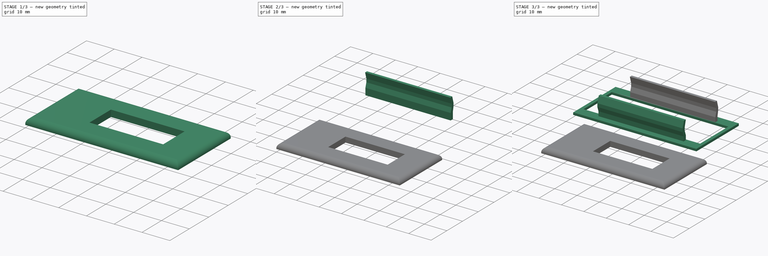
[diagram: build sequence overview — one tinted view per stage of 3, left to right]
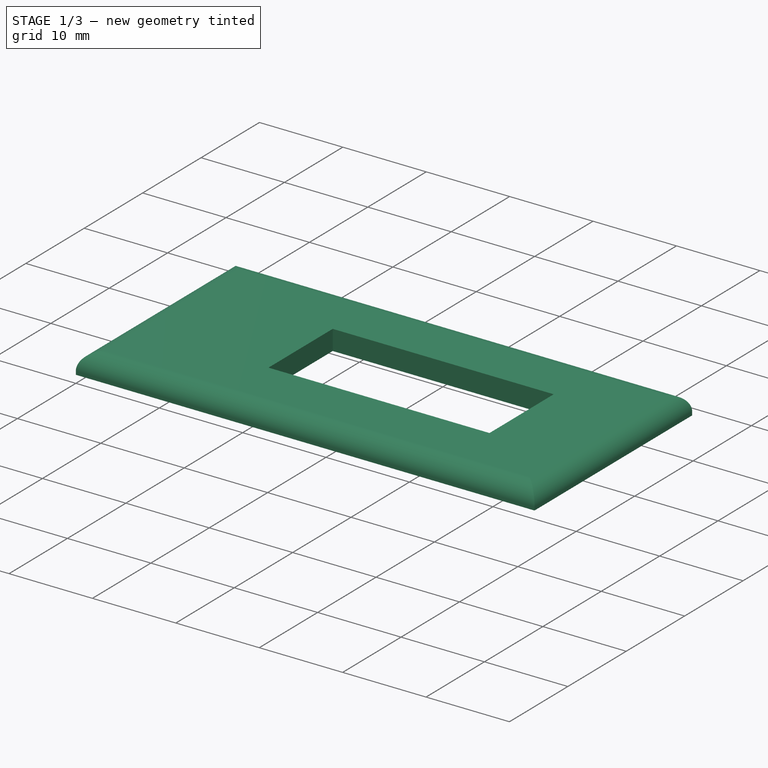
[diagram: stage 1 of 3 — iso view after this stage's code; geometry added in this stage tinted green]
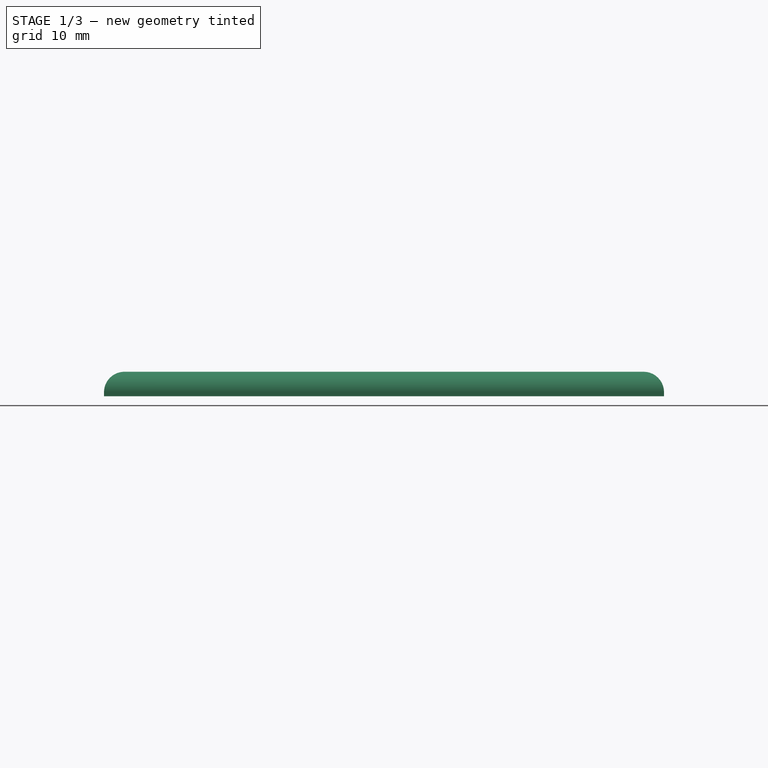
[diagram: stage 1 of 3 — front view after this stage's code; geometry added in this stage tinted green]
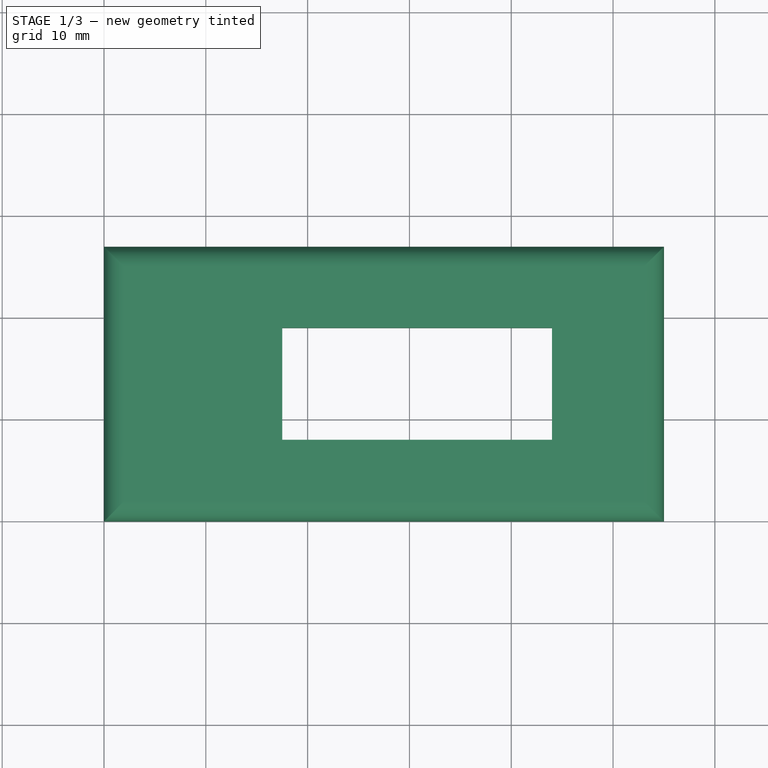
[diagram: stage 1 of 3 — top view after this stage's code; geometry added in this stage tinted green]
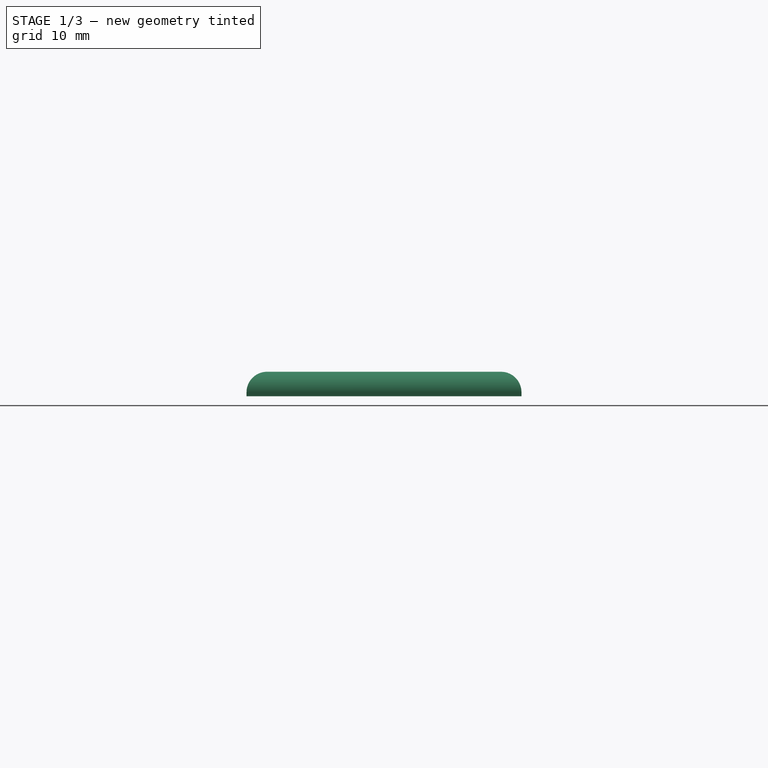
[diagram: stage 1 of 3 — right view after this stage's code; geometry added in this stage tinted green]
FCSTD DOCUMENT  (FreeCAD 0.21R33668 +26 (Git))
Label: mgb_display2
License: All rights reserved
LicenseURL: http://en.wikipedia.org/wiki/All_rights_reserved
objects: PartDesign::Body×6, Sketcher::SketchObject×5, PartDesign::Pad×5, Part::MultiFuse×1, App::Part×1, Part::Fillet×1, Part::Cut×1
note: 24 computed .brp shape members not serialized (recipe doc carries the construction recipe); baked Part::Feature solids carry a one-line shape summary decoded from their .brp

FEATURE [Sketcher::SketchObject] Sketch
  FullyConstrained = true
  MapMode = 5
  Support = -> [XY_Plane001]
  sketch-geometry (8):
    g0: LineSegment StartX=0 StartY=27 StartZ=0 EndX=55 EndY=27 EndZ=0
    g1: LineSegment StartX=55 StartY=27 StartZ=0 EndX=55 EndY=0 EndZ=0
    g2: LineSegment StartX=55 StartY=0 StartZ=0 EndX=0 EndY=0 EndZ=0
    g3: LineSegment StartX=0 StartY=0 StartZ=0 EndX=0 EndY=27 EndZ=0
    g4: LineSegment StartX=17.5 StartY=19 StartZ=0 EndX=44 EndY=19 EndZ=0
    g5: LineSegment StartX=44 StartY=19 StartZ=0 EndX=44 EndY=8 EndZ=0
    g6: LineSegment StartX=44 StartY=8 StartZ=0 EndX=17.5 EndY=8 EndZ=0
    g7: LineSegment StartX=17.5 StartY=8 StartZ=0 EndX=17.5 EndY=19 EndZ=0
  constraints (24):
    c: Coincident(g0,g1)
    c: Coincident(g1,g2)
    c: Coincident(g2,g3)
    c: Coincident(g3,g0)
    c: Horizontal(g0)
    c: Horizontal(g2)
    c: Vertical(g1)
    c: Vertical(g3)
    c: PointOnObject(g0,g-2)
    c: PointOnObject(g1,g-1)
    c: DistanceX(g0) = 55
    c: Coincident(g4,g5)
    c: Coincident(g5,g6)
    c: Coincident(g6,g7)
    c: Coincident(g7,g4)
    c: Horizontal(g4)
    c: Horizontal(g6)
    c: Vertical(g5)
    c: Vertical(g7)
    c: DistanceX(g4) = 26.5
    c: DistanceX(g5,g1) = 11
    c: DistanceY(g5,g5) = 11
    c: DistanceY(g2,g0) = 27
    c: DistanceY(g4,g0) = 8
FEATURE [PartDesign::Pad] Pad
  AllowMultiFace = false
  Direction = (0,0,1)
  Length = 2.4
  Length2 = 100
  Profile = -> Sketch
  Type = 0
FEATURE [Sketcher::SketchObject] Sketch002
  FullyConstrained = false
  MapMode = 5
  Support = -> [XY_Plane006]
  sketch-geometry (4):
    g0: LineSegment StartX=1.5 StartY=22.5 StartZ=0 EndX=7.5 EndY=22.5 EndZ=0
    g1: LineSegment StartX=7.5 StartY=22.5 StartZ=0 EndX=7.5 EndY=4.5 EndZ=0
    g2: LineSegment StartX=7.5 StartY=4.5 StartZ=0 EndX=1.5 EndY=4.5 EndZ=0
    g3: LineSegment StartX=1.5 StartY=4.5 StartZ=0 EndX=1.5 EndY=22.5 EndZ=0
  constraints (12):
    c: Coincident(g0,g1)
    c: Coincident(g1,g2)
    c: Coincident(g2,g3)
    c: Coincident(g3,g0)
    c: Horizontal(g0)
    c: Horizontal(g2)
    c: Vertical(g1)
    c: Vertical(g3)
    c: DistanceY(g3,g3) = 18
    c: DistanceX(g0,g0) = 6
    c: DistanceY(g-1,g2) = 4.5
    c: DistanceX(g-1,g2) = 1.5
FEATURE [PartDesign::Pad] Pad004
  AllowMultiFace = false
  Direction = (1,1,1)
  Length = 2
  Length2 = 100
  Profile = -> Sketch002
  Type = 0
FEATURE [PartDesign::Body] Body002
  Group = -> [Sketch002,Pad004]
  Origin = -> Origin006
  Tip = -> Pad004
FEATURE [App::Part] Part
  Group = -> [PadBody,Pad001Body,Body,CopySketch004001,Body001,CopyMirroredSketch,Body002]
  Origin = -> Origin
FEATURE [Part::Fillet] Fillet
  Base = -> PadBody
  Edges = 4 edges r=2: [Edge4,Edge7,Edge10,Edge12]
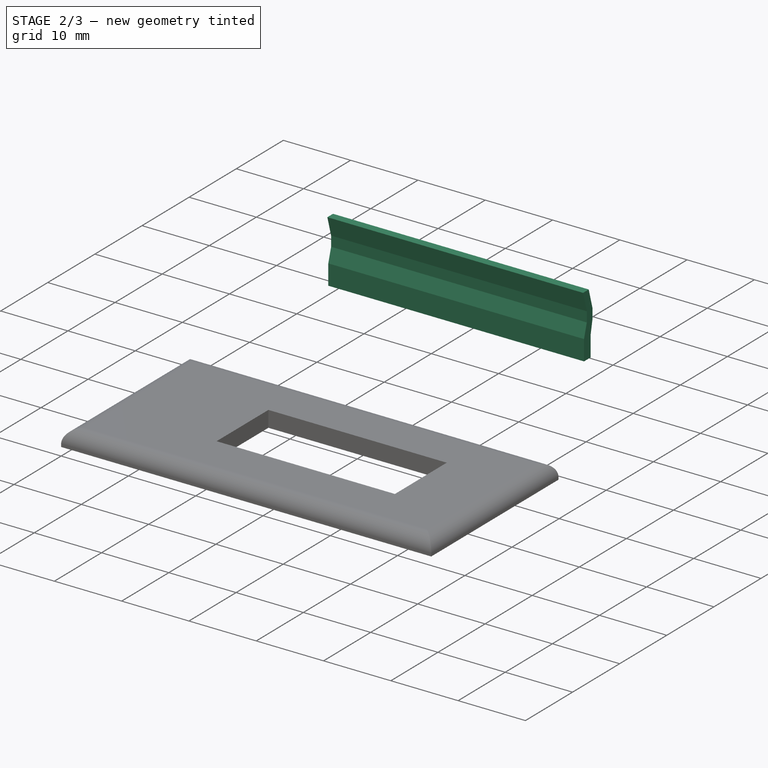
[diagram: stage 2 of 3 — iso view after this stage's code; geometry added in this stage tinted green]
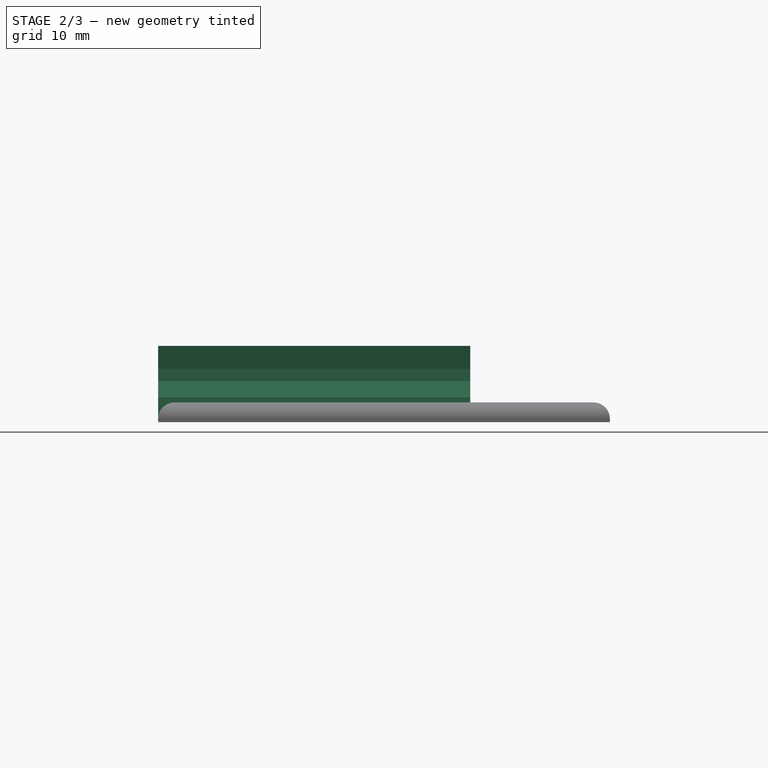
[diagram: stage 2 of 3 — front view after this stage's code; geometry added in this stage tinted green]
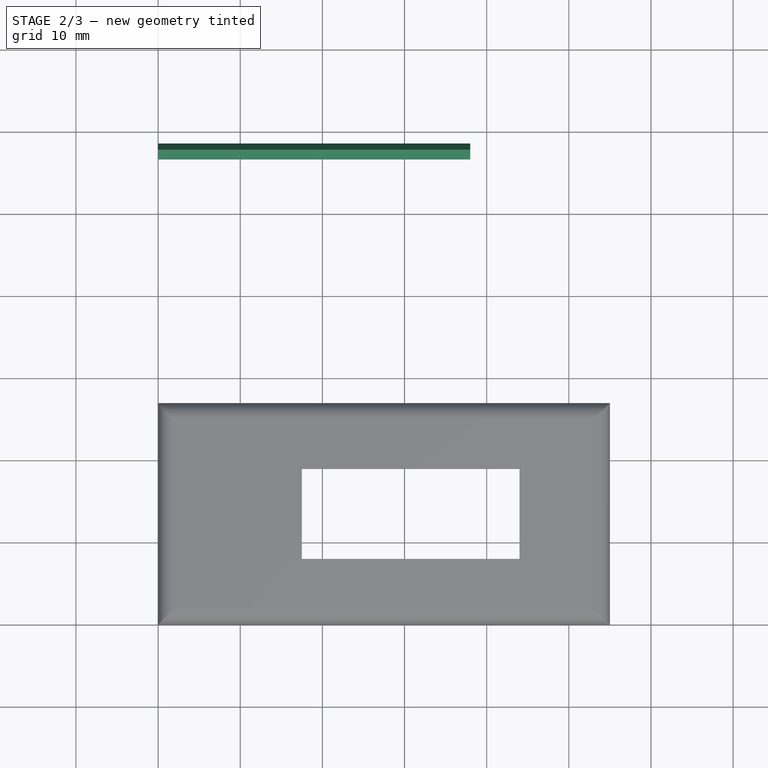
[diagram: stage 2 of 3 — top view after this stage's code; geometry added in this stage tinted green]
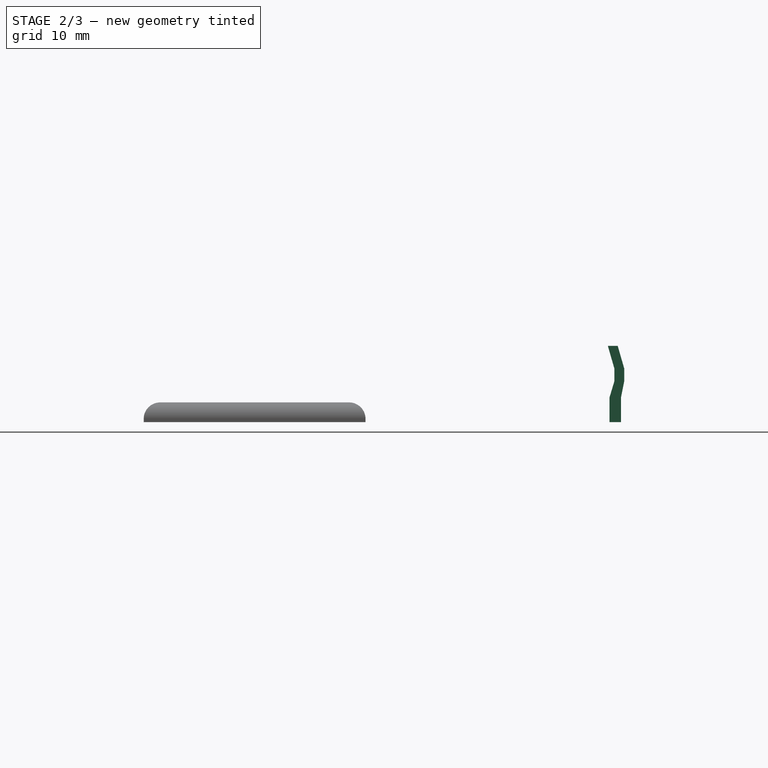
[diagram: stage 2 of 3 — right view after this stage's code; geometry added in this stage tinted green]
FEATURE [PartDesign::Body] Pad001Body  label="Body001"
  Group = -> [Sketch001,Pad001]
  Origin = -> Origin002
  Tip = -> Pad001
FEATURE [Sketcher::SketchObject] CopyMirroredSketch  label="Sketch004"
  FullyConstrained = true
  Placement = pos=(0,0,0) rot=(0.57735,0.57735,0.57735;2.0944rad)
  sketch-geometry (10):
    g0: LineSegment StartX=56.7 StartY=0 StartZ=0 EndX=56.7 EndY=3 EndZ=0
    g1: LineSegment StartX=56.7 StartY=3 StartZ=0 EndX=57.3 EndY=5 EndZ=0
    g2: LineSegment StartX=57.3 StartY=5 StartZ=0 EndX=57.3 EndY=6.5 EndZ=0
    g3: LineSegment StartX=57.3 StartY=6.5 StartZ=0 EndX=56.5 EndY=9.28 EndZ=0
    g4: LineSegment StartX=56.5 StartY=9.28 StartZ=0 EndX=57.7 EndY=9.28 EndZ=0
    g5: LineSegment StartX=57.7 StartY=9.28 StartZ=0 EndX=58.5 EndY=6.5 EndZ=0
    g6: LineSegment StartX=58.5 StartY=6.5 StartZ=0 EndX=58.5 EndY=5 EndZ=0
    g7: LineSegment StartX=58.5 StartY=5 StartZ=0 EndX=58.1 EndY=3 EndZ=0
    g8: LineSegment StartX=58.1 StartY=3 StartZ=0 EndX=58.1 EndY=0 EndZ=0
    g9: LineSegment StartX=58.1 StartY=0 StartZ=0 EndX=56.7 EndY=0 EndZ=0
  constraints (30):
    c: Vertical(g0)
    c: Coincident(g0,g1)
    c: Coincident(g1,g2)
    c: Vertical(g2)
    c: Coincident(g2,g3)
    c: Coincident(g3,g4)
    c: Coincident(g4,g5)
    c: Coincident(g5,g6)
    c: Vertical(g6)
    c: Coincident(g6,g7)
    c: Coincident(g7,g8)
    c: Coincident(g8,g9)
    c: Coincident(g9,g0)
    c: DistanceY(g6,g6) = 1.5
    c: DistanceY(g2,g2) = 1.5
    c: DistanceX(g4,g4) = 1.2
    c: DistanceY(g5,g5) = 2.78
    c: DistanceY(g3,g3) = 2.78
    c: DistanceX(g5,g5) = 0.8
    c: DistanceY(g7,g7) = 2
    c: DistanceY(g8,g8) = 3
    c: DistanceY(g0,g0) = 3
    c: DistanceX(g3,g3) = 0.8
    c: Horizontal(g9)
    c: Horizontal(g-1,g8)
    c: Horizontal(g4)
    c: Vertical(g8)
    c: DistanceX(g9,g9) = 1.4
    c: DistanceX(g-1,g0) = 56.7
    c: DistanceX(g7,g6) = 0.4
FEATURE [PartDesign::Pad] Pad003
  AllowMultiFace = false
  Direction = (1,0,0)
  Length = 38
  Length2 = 100
  Placement = pos=(0,0,0) rot=(0.57735,0.57735,0.57735;2.0944rad)
  Profile = -> CopyMirroredSketch
  Type = 0
FEATURE [Part::Cut] Cut
  Base = -> Fillet
  Tool = -> Pad004
FEATURE [PartDesign::Body] Body003  label="Body004"
  Origin = -> Origin007
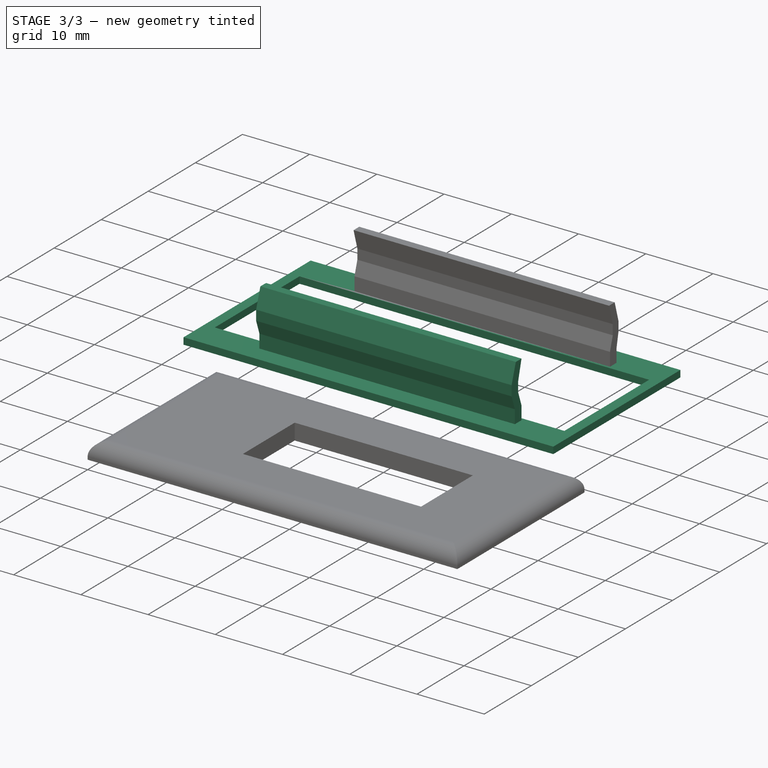
[diagram: stage 3 of 3 — iso view after this stage's code; geometry added in this stage tinted green]
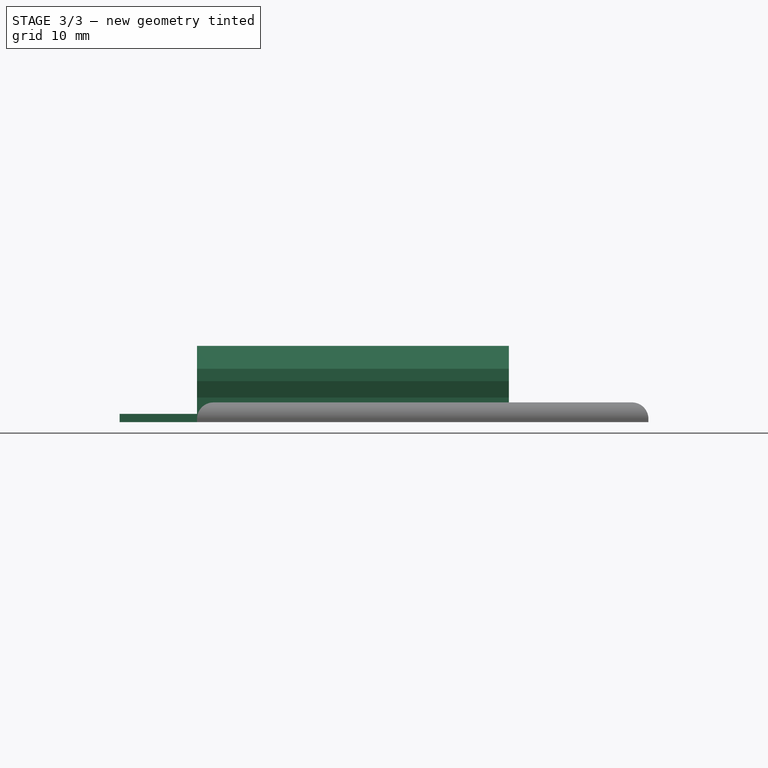
[diagram: stage 3 of 3 — front view after this stage's code; geometry added in this stage tinted green]
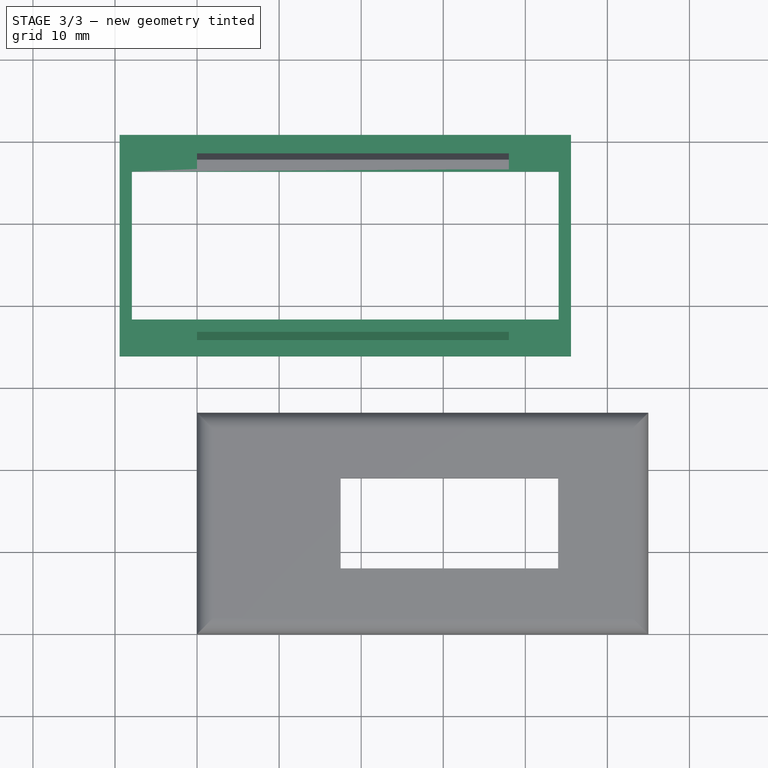
[diagram: stage 3 of 3 — top view after this stage's code; geometry added in this stage tinted green]
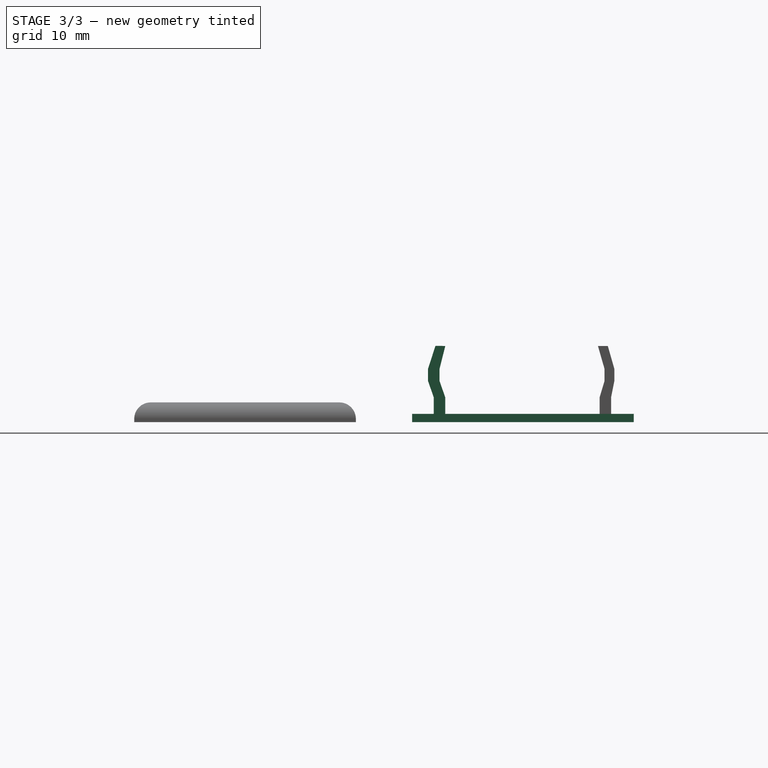
[diagram: stage 3 of 3 — right view after this stage's code; geometry added in this stage tinted green]
FEATURE [PartDesign::Body] PadBody
  Group = -> [Sketch,Pad]
  Origin = -> Origin001
  Tip = -> Pad
FEATURE [Sketcher::SketchObject] CopySketch004001  label="Sketch005"
  FullyConstrained = false
  Placement = pos=(0,0,0) rot=(0.57735,0.57735,0.57735;2.0944rad)
  sketch-geometry (10):
    g0: LineSegment StartX=37.9 StartY=0 StartZ=0 EndX=37.9 EndY=3 EndZ=0
    g1: LineSegment StartX=37.9 StartY=3 StartZ=0 EndX=37.2 EndY=5 EndZ=0
    g2: LineSegment StartX=37.2 StartY=5 StartZ=0 EndX=37.2 EndY=6.5 EndZ=0
    g3: LineSegment StartX=37.2 StartY=6.5 StartZ=0 EndX=37.9 EndY=9.28 EndZ=0
    g4: LineSegment StartX=37.9 StartY=9.28 StartZ=0 EndX=36.7 EndY=9.28923 EndZ=0
    g5: LineSegment StartX=36.7 StartY=9.28923 StartZ=0 EndX=35.8 EndY=6.5 EndZ=0
    g6: LineSegment StartX=35.8 StartY=6.5 StartZ=0 EndX=35.8 EndY=5 EndZ=0
    g7: LineSegment StartX=35.8 StartY=5 StartZ=0 EndX=36.5 EndY=3 EndZ=0
    g8: LineSegment StartX=36.5 StartY=3 StartZ=0 EndX=36.5 EndY=0 EndZ=0
    g9: LineSegment StartX=36.5 StartY=0 StartZ=0 EndX=37.9 EndY=0 EndZ=0
  constraints (29):
    c: PointOnObject(g0,g-1)
    c: Vertical(g0)
    c: Coincident(g0,g1)
    c: Coincident(g1,g2)
    c: Vertical(g2)
    c: Coincident(g2,g3)
    c: Coincident(g3,g4)
    c: Coincident(g4,g5)
    c: Coincident(g5,g6)
    c: Vertical(g6)
    c: Coincident(g6,g7)
    c: Coincident(g7,g8)
    c: PointOnObject(g8,g-1)
    c: Coincident(g8,g9)
    c: Coincident(g9,g0)
    c: DistanceX(g4,g4) = 1.2
    c: DistanceY(g0,g0) = 3
    c: DistanceY(g8,g8) = 3
    c: DistanceX(g1,g0) = 0.7
    c: DistanceY(g1,g1) = 2
    c: DistanceY(g7,g7) = 2
    c: DistanceY(g1,g2) = 1.5
    c: DistanceY(g6,g6) = 1.5
    c: DistanceY(g3,g3) = 2.78
    c: DistanceX(g3,g3) = 0.7
    c: DistanceX(g9,g9) = 1.4
    c: Vertical(g8)
    c: DistanceX(g6,g7) = 0.7
    c: DistanceX(g-1,g0) = 37.9
FEATURE [PartDesign::Pad] Pad002
  AllowMultiFace = false
  Direction = (1,0,0)
  Length = 38
  Length2 = 100
  Placement = pos=(0,0,0) rot=(0.57735,0.57735,0.57735;2.0944rad)
  Profile = -> CopySketch004001
  ReferenceAxis = -> CopySketch004001 [N_Axis]
  Type = 0
FEATURE [PartDesign::Body] Body
  Group = -> [Pad002]
  Origin = -> Origin004
  Tip = -> Pad002
FEATURE [Sketcher::SketchObject] Sketch001
  FullyConstrained = false
  MapMode = 5
  Support = -> [XY_Plane002]
  sketch-geometry (8):
    g0: LineSegment StartX=45.5595 StartY=60.8631 StartZ=0 EndX=-9.44046 EndY=60.8631 EndZ=0
    g1: LineSegment StartX=-9.44046 StartY=60.8631 StartZ=0 EndX=-9.44046 EndY=33.8631 EndZ=0
    g2: LineSegment StartX=-9.44046 StartY=33.8631 StartZ=0 EndX=45.5595 EndY=33.8631 EndZ=0
    g3: LineSegment StartX=45.5595 StartY=33.8631 StartZ=0 EndX=45.5595 EndY=60.8631 EndZ=0
    g4: LineSegment StartX=44.0595 StartY=38.3631 StartZ=0 EndX=44.0595 EndY=56.3631 EndZ=0
    g5: LineSegment StartX=-7.94046 StartY=56.3631 StartZ=0 EndX=-7.94046 EndY=38.3631 EndZ=0
    g6: LineSegment StartX=-7.94046 StartY=38.3631 StartZ=0 EndX=44.0595 EndY=38.3631 EndZ=0
    g7: LineSegment StartX=-7.94046 StartY=56.3631 StartZ=0 EndX=44.0595 EndY=56.3631 EndZ=0
  constraints (22):
    c: Coincident(g0,g1)
    c: Coincident(g1,g2)
    c: Coincident(g2,g3)
    c: Coincident(g3,g0)
    c: Vertical(g1)
    c: Vertical(g3)
    c: DistanceX(g0) = -55
    c: Vertical(g4)
    c: DistanceY(g3,g3) = 27
    c: DistanceY(g1,g1) = 27
    c: DistanceX(g1,g5) = 1.5
    c: Vertical(g5)
    c: Horizontal(g2)
    c: Coincident(g6,g5)
    c: Coincident(g6,g4)
    c: Horizontal(g6)
    c: Coincident(g7,g5)
    c: Coincident(g7,g4)
    c: Horizontal(g7)
    c: DistanceX(g4,g2) = 1.5
    c: DistanceY(g4,g4) = 18
    c: DistanceY(g4,g0) = 4.5
FEATURE [PartDesign::Pad] Pad001
  AllowMultiFace = false
  Direction = (0,0,1)
  Length = 1
  Length2 = 100
  Profile = -> Sketch001
  Type = 0
FEATURE [PartDesign::Body] Body001  label="Body003"
  Group = -> [Pad003]
  Origin = -> Origin005
  Tip = -> Pad003
FEATURE [Part::MultiFuse] Fusion
  Shapes = -> [Pad001,Pad002,Pad003]
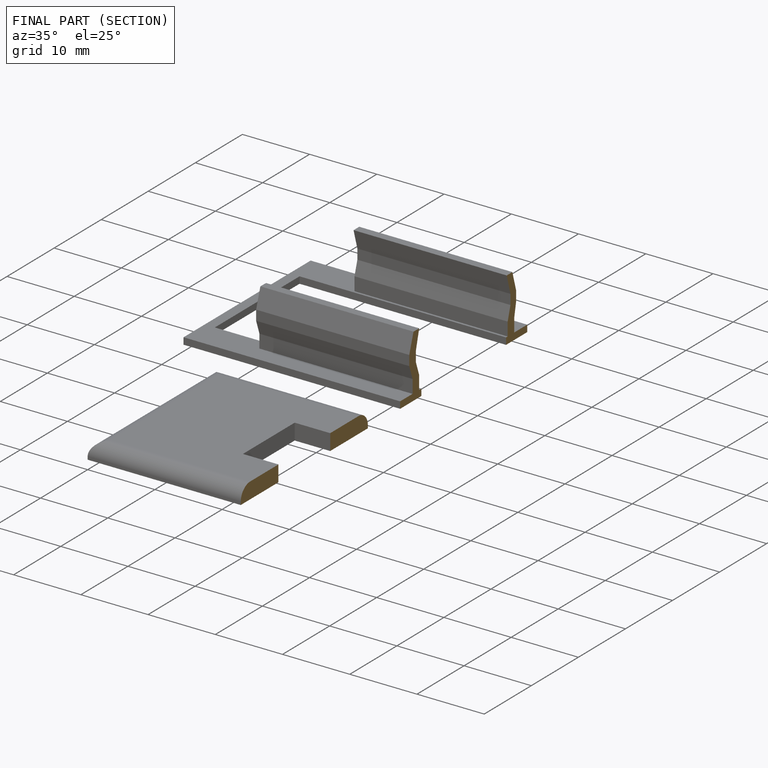
[diagram: finished part — half-section view (interior)]
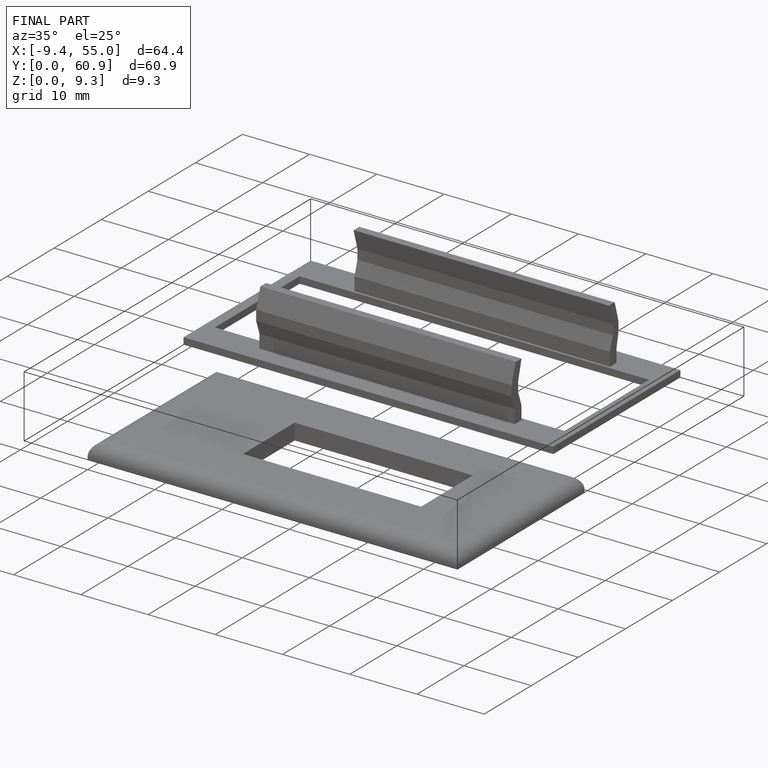
[diagram: finished part — iso view with bounding-box wireframe]
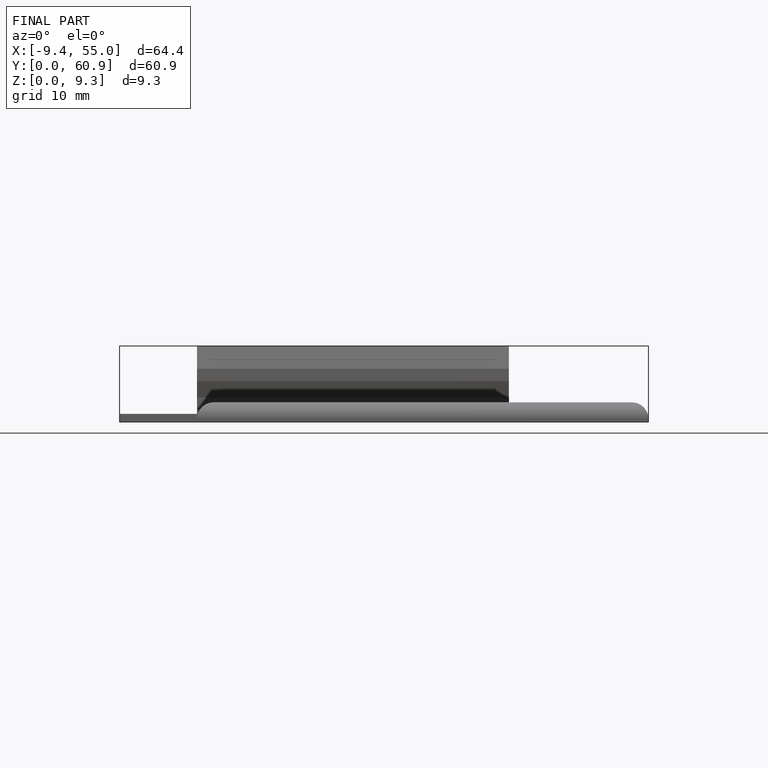
[diagram: finished part — front view with bounding-box wireframe]
